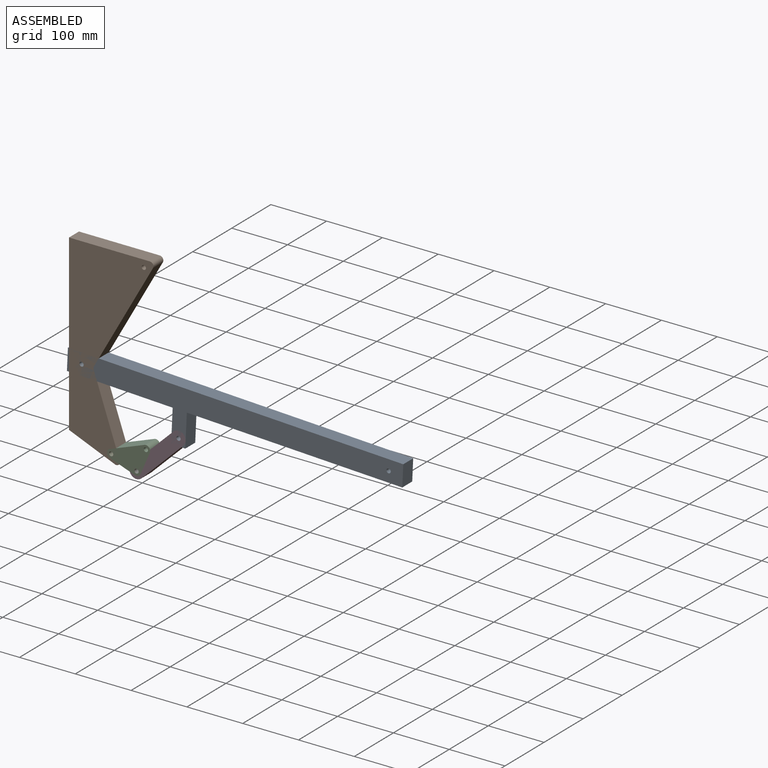
[diagram: assembled view]
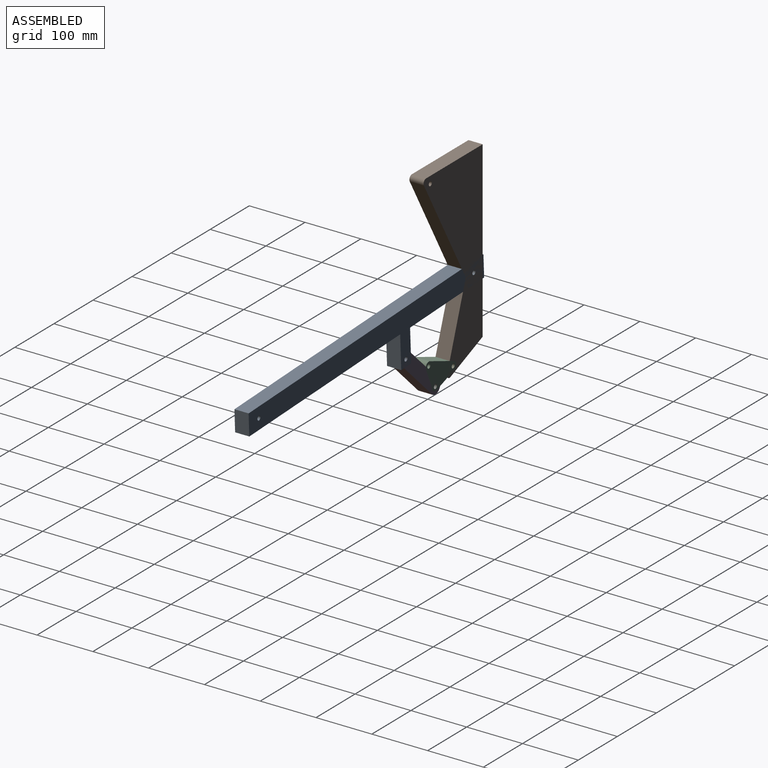
[diagram: assembled view, second angle]
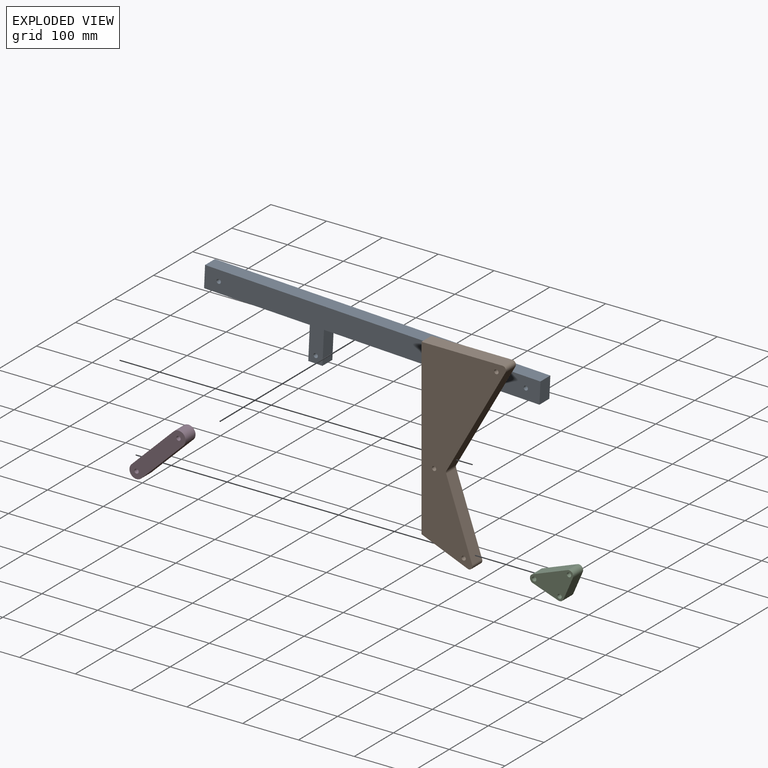
[diagram: exploded view]
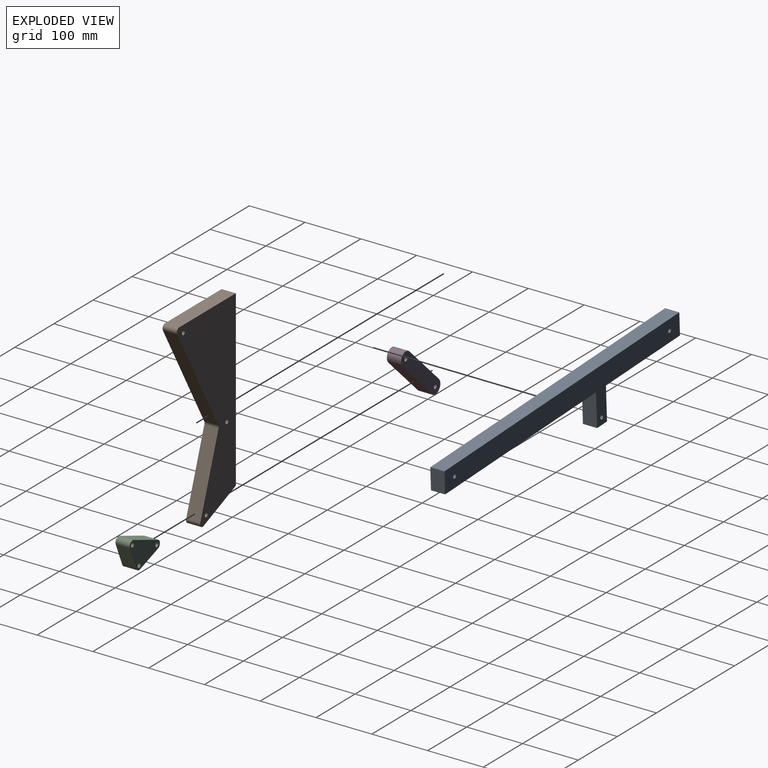
[diagram: exploded view, second angle]
ASSEMBLY  parts=4 mates=3
PART A: 13 faces, bbox 601.7x25.4x97.2 mm
  f0: plane 59.13x25.4mm, normal (1,0,0), area 1501.9mm2, adj f1,f8,f11,f12
  f1: plane 386.56x25.4mm, normal (0,0,-1), area 9818.7mm2, adj f0,f2,f11,f12
  f2: plane 38.1x25.4mm, normal (1,0,0), area 967.7mm2, adj f1,f3,f11,f12
  f3: plane 601.68x25.4mm, normal (0,0,1), area 15282.6mm2, adj f2,f4,f11,f12
  f4: plane 38.1x25.4mm, normal (-1,0,0), area 967.7mm2, adj f3,f5,f11,f12
  f5: plane 189.71x25.4mm, normal (0,0,-1), area 4818.7mm2, adj f4,f6,f11,f12
  f6: plane 59.13x25.4mm, normal (-1,0,0), area 1501.9mm2, adj f5,f8,f11,f12
  f7: cylinder r=3.81mm len=25.4mm, axis (0,1,0), area 608mm2, adj f11,f12
  f8: plane 25.4x25.4mm, normal (0,0,-1), area 645.2mm2, adj f0,f6,f11,f12
  f9: cylinder r=3.81mm len=25.4mm, axis (0,1,0), area 608mm2, adj f11,f12
  f10: cylinder r=3.81mm len=25.4mm, axis (0,1,0), area 608mm2, adj f11,f12
  f11: plane 601.68x97.23mm, normal (0,-1,0), area 24288.9mm2, adj f0,f1,f2,f3,f4,f5,f6,f7
  f12: plane 601.68x97.23mm, normal (0,1,0), area 24288.9mm2, adj f0,f1,f2,f3,f4,f5,f6,f7
PART B: 13 faces, bbox 151.3x25.4x345.9 mm
  f0: plane 187.38x105.82mm, normal (0.87,0,-0.49), area 5466.1mm2, adj f1,f10,f11,f12
  f1: cylinder r=6.35mm len=25.4mm, axis (0,1,0), area 336.3mm2, adj f0,f2,f11,f12
  f2: plane 144.95x25.4mm, normal (0,0,1), area 3681.8mm2, adj f1,f3,f11,f12
  f3: plane 311.67x25.4mm, normal (-1,0,0), area 7916.3mm2, adj f2,f4,f11,f12
  f4: plane 82.42x33.79mm, normal (-0.38,0,-0.93), area 2262.4mm2, adj f3,f5,f11,f12
  f5: cylinder r=6.35mm len=25.4mm, axis (0,1,0), area 369.6mm2, adj f4,f6,f11,f12
  f6: plane 135.46x46.64mm, normal (0.95,0,0.33), area 3639mm2, adj f5,f10,f11,f12
  f7: cylinder r=3.81mm len=25.4mm, axis (0,1,0), area 608mm2, adj f11,f12
  f8: cylinder r=3.81mm len=25.4mm, axis (0,1,0), area 608mm2, adj f11,f12
  f9: cylinder r=3.81mm len=25.4mm, axis (0,1,0), area 608mm2, adj f11,f12
  f10: cylinder r=6.35mm len=25.4mm, axis (0,1,0), area 136.4mm2, adj f0,f6,f11,f12
  f11: plane 345.93x151.3mm, normal (0,-1,0), area 28270.3mm2, adj f0,f1,f2,f3,f4,f5,f6,f7
  f12: plane 345.93x151.3mm, normal (0,1,0), area 28270.3mm2, adj f0,f1,f2,f3,f4,f5,f6,f7
PART C: 11 faces, bbox 81.8x25.4x46.1 mm
  f0: plane 66.57x25.4mm, normal (0,0,1), area 1691mm2, adj f1,f5,f6,f7
  f1: cylinder r=7.62mm len=25.4mm, axis (0,1,0), area 473.4mm2, adj f0,f2,f6,f7
  f2: plane 37x30.9mm, normal (-0.64,0,-0.77), area 1224.5mm2, adj f1,f3,f6,f7
  f3: cylinder r=7.62mm len=25.4mm, axis (0,1,0), area 291mm2, adj f2,f4,f6,f7
  f4: plane 30.9x29.57mm, normal (0.72,0,-0.69), area 1086.4mm2, adj f3,f5,f6,f7
  f5: cylinder r=7.62mm len=25.4mm, axis (0,1,0), area 451.8mm2, adj f0,f4,f6,f7
  f6: plane 81.81x46.14mm, normal (0,-1,0), area 2274.9mm2, adj f0,f1,f2,f3,f4,f5,f8,f9
  f7: plane 81.81x46.14mm, normal (0,1,0), area 2274.9mm2, adj f0,f1,f2,f3,f4,f5,f8,f9
  f8: cylinder r=3.81mm len=25.4mm, axis (0,-1,0), area 608mm2, adj f6,f7
  f9: cylinder r=3.81mm len=25.4mm, axis (0,-1,0), area 608mm2, adj f6,f7
  f10: cylinder r=3.81mm len=25.4mm, axis (0,-1,0), area 608mm2, adj f6,f7
PART D: 8 faces, bbox 130.5x25.4x25.4 mm
  f0: plane 105.08x25.4mm, normal (0,0,1), area 2669mm2, adj f1,f5,f6,f7
  f1: cylinder r=12.7mm len=25.4mm, axis (0,1,0), area 1013.4mm2, adj f0,f2,f6,f7
  f2: plane 105.08x25.4mm, normal (0,0,-1), area 2669mm2, adj f1,f5,f6,f7
  f3: cylinder r=3.81mm len=25.4mm, axis (0,1,0), area 608mm2, adj f6,f7
  f4: cylinder r=3.81mm len=25.4mm, axis (0,1,0), area 608mm2, adj f6,f7
  f5: cylinder r=12.7mm len=25.4mm, axis (0,1,0), area 1013.4mm2, adj f0,f2,f6,f7
  f6: plane 130.48x25.4mm, normal (0,-1,0), area 3084.5mm2, adj f0,f1,f2,f3,f4,f5
  f7: plane 130.48x25.4mm, normal (0,1,0), area 3084.5mm2, adj f0,f1,f2,f3,f4,f5
PLACE A rot(axis=(0,1,0),2.7deg) t=(0,0,0)mm
PLACE B at identity
PLACE C rot(axis=(0,-1,0),20.6deg) t=(52.96,0,-131.01)mm
PLACE D rot(axis=(0,-1,0),44.2deg) t=(98.46,0,-146.94)mm
MATE revolute B.f8 <-> C.f10  axis (0,1,0) through (52.96,0,-131.01)mm
MATE revolute C.f3 <-> D.f3  axis (0,-1,0) through (98.46,0,-146.94)mm
MATE revolute A.f9 <-> D.f4  axis (0,1,0) through (173.77,0,-73.65)mm
